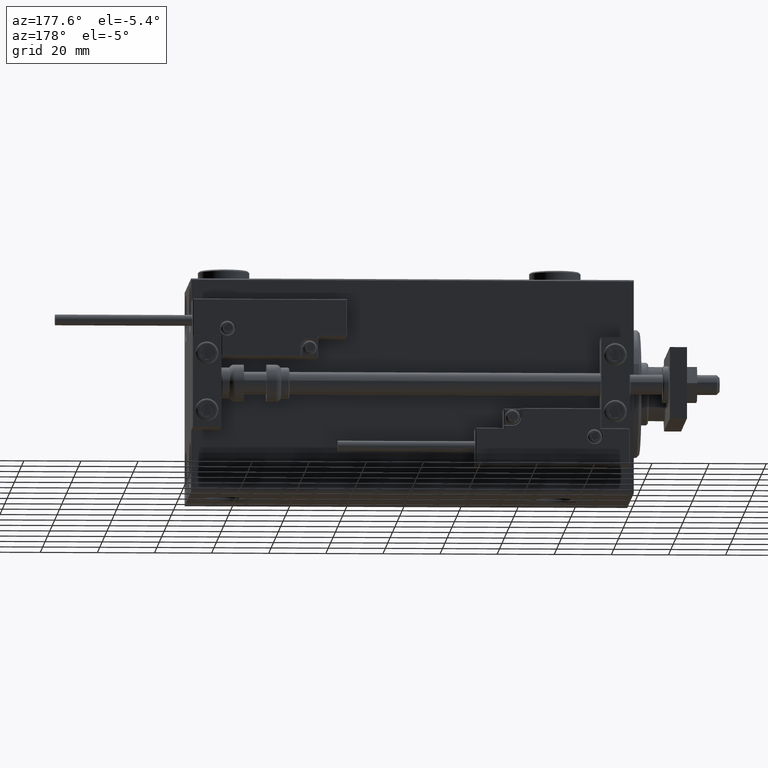
[diagram: clean part render]
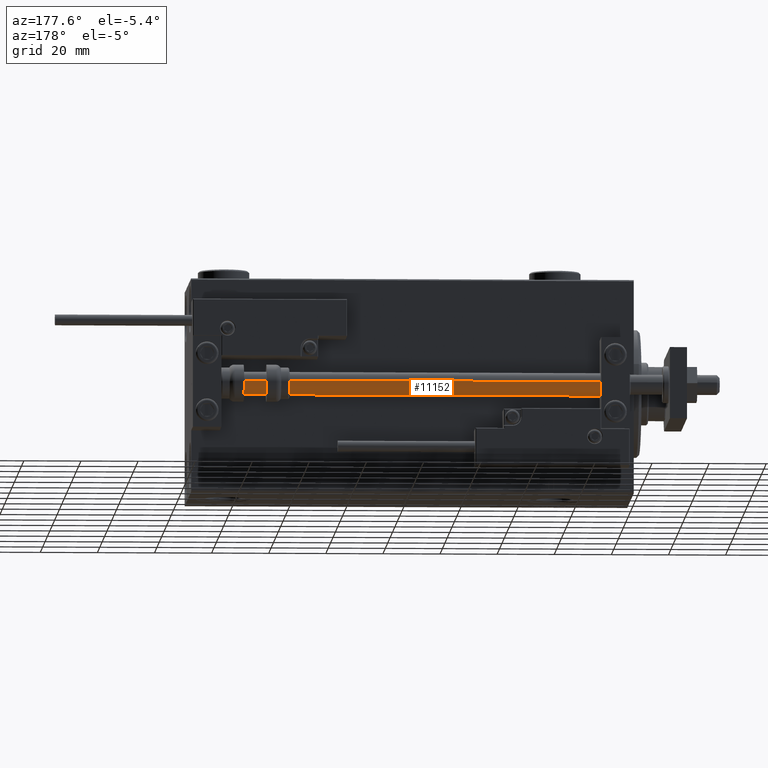
[diagram: same view with one face highlighted and labeled with its STEP entity id]
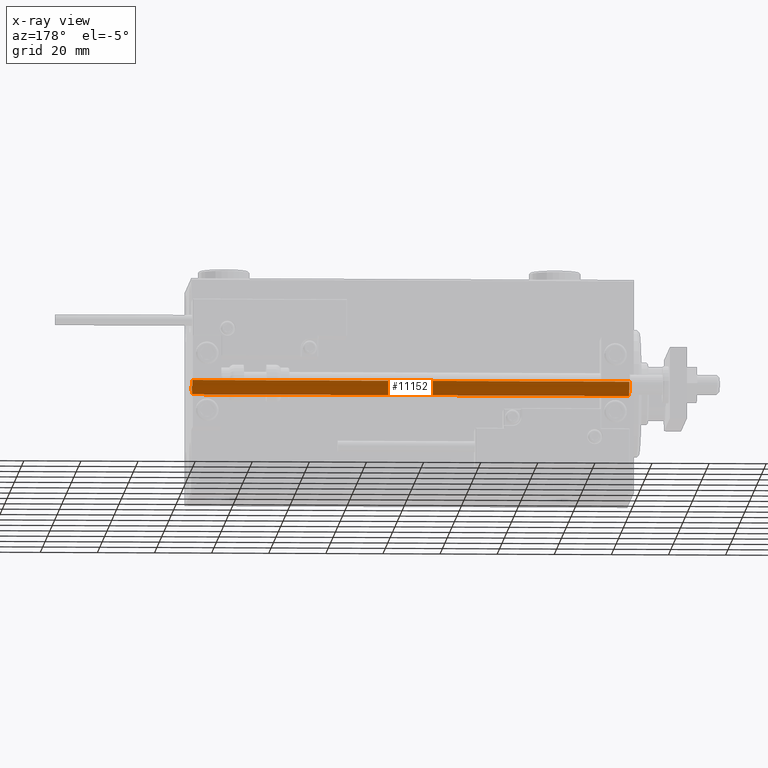
[diagram: x-ray of the same camera — body ghosted, the highlighted face saturated]
A machine part, auxiliary view. The second image highlights one B-rep face of the part: STEP entity #11152.
The next image is the same camera in x-ray: the body ghosted, the highlighted face saturated — about 0% of this face is hidden behind the body in this view.
In plain terms, the highlighted cylindrical surface (edge-blend (fillet) strip) has radius 4 mm, axis along (-1, 0, 0).
Its self-contained STEP definition (entity closure, byte-faithful):
#823 = ORIENTED_EDGE ( 'NONE', *, *, #12262, .F. ) ;
#2364 = ORIENTED_EDGE ( 'NONE', *, *, #7605, .T. ) ;
#3455 = DIRECTION ( 'NONE',  ( -0.000000000000000000, -0.000000000000000000, -1.000000000000000000 ) ) ;
#7605 = EDGE_CURVE ( 'NONE', #50683, #30988, #51138, .T. ) ;
#9325 = DIRECTION ( 'NONE',  ( -0.000000000000000000, -0.000000000000000000, 1.000000000000000000 ) ) ;
#9423 = FACE_OUTER_BOUND ( 'NONE', #16289, .T. ) ;
#9987 = CARTESIAN_POINT ( 'NONE',  ( -4.000000000000000000, 0.000000000000000000, 2.000000000000029310 ) ) ;
#11152 = ADVANCED_FACE ( 'NONE', ( #9423 ), #25083, .T. ) ;
#12262 = EDGE_CURVE ( 'NONE', #50683, #30428, #40036, .T. ) ;
#15890 = AXIS2_PLACEMENT_3D ( 'NONE', #19623, #35507, #35253 ) ;
#16289 = EDGE_LOOP ( 'NONE', ( #25249, #823, #2364, #49272 ) ) ;
#19623 = CARTESIAN_POINT ( 'NONE',  ( 0.000000000000000000, 0.000000000000000000, 155.0000000000000000 ) ) ;
#21418 = DIRECTION ( 'NONE',  ( -1.000000000000000000, 0.000000000000000000, 0.000000000000000000 ) ) ;
#24985 = DIRECTION ( 'NONE',  ( 1.000000000000000000, 0.000000000000000000, 0.000000000000000000 ) ) ;
#25083 = CYLINDRICAL_SURFACE ( 'NONE', #43351, 4.000000000000000000 ) ;
#25249 = ORIENTED_EDGE ( 'NONE', *, *, #51402, .F. ) ;
#26371 = AXIS2_PLACEMENT_3D ( 'NONE', #33297, #9325, #24985 ) ;
#28098 = CARTESIAN_POINT ( 'NONE',  ( 4.000000000000000000, 4.898587196589412829E-16, 155.0000000000000000 ) ) ;
#29017 = VECTOR ( 'NONE', #35664, 1000.000000000000000 ) ;
#30428 = VERTEX_POINT ( 'NONE', #35648 ) ;
#30988 = VERTEX_POINT ( 'NONE', #9987 ) ;
#31998 = LINE ( 'NONE', #28098, #29017 ) ;
#33143 = DIRECTION ( 'NONE',  ( -0.000000000000000000, -0.000000000000000000, -1.000000000000000000 ) ) ;
#33194 = VECTOR ( 'NONE', #3455, 1000.000000000000000 ) ;
#33297 = CARTESIAN_POINT ( 'NONE',  ( 0.000000000000000000, 0.000000000000000000, 2.000000000000029310 ) ) ;
#35253 = DIRECTION ( 'NONE',  ( 1.000000000000000000, 0.000000000000000000, 0.000000000000000000 ) ) ;
#35507 = DIRECTION ( 'NONE',  ( 0.000000000000000000, 0.000000000000000000, 1.000000000000000000 ) ) ;
#35648 = CARTESIAN_POINT ( 'NONE',  ( 4.000000000000000000, 4.898587196589412829E-16, 155.0000000000000000 ) ) ;
#35664 = DIRECTION ( 'NONE',  ( -0.000000000000000000, -0.000000000000000000, -1.000000000000000000 ) ) ;
#36322 = VERTEX_POINT ( 'NONE', #50766 ) ;
#36805 = CARTESIAN_POINT ( 'NONE',  ( 0.000000000000000000, 0.000000000000000000, 155.0000000000000000 ) ) ;
#39193 = CARTESIAN_POINT ( 'NONE',  ( -4.000000000000000000, 0.000000000000000000, 155.0000000000000000 ) ) ;
#40036 = CIRCLE ( 'NONE', #15890, 4.000000000000000000 ) ;
#40144 = EDGE_CURVE ( 'NONE', #30988, #36322, #51329, .T. ) ;
#42823 = CARTESIAN_POINT ( 'NONE',  ( -4.000000000000000000, 0.000000000000000000, 155.0000000000000000 ) ) ;
#43351 = AXIS2_PLACEMENT_3D ( 'NONE', #36805, #33143, #21418 ) ;
#49272 = ORIENTED_EDGE ( 'NONE', *, *, #40144, .T. ) ;
#50683 = VERTEX_POINT ( 'NONE', #39193 ) ;
#50766 = CARTESIAN_POINT ( 'NONE',  ( 4.000000000000000000, 4.898587196589412829E-16, 2.000000000000029310 ) ) ;
#51138 = LINE ( 'NONE', #42823, #33194 ) ;
#51329 = CIRCLE ( 'NONE', #26371, 4.000000000000000000 ) ;
#51402 = EDGE_CURVE ( 'NONE', #30428, #36322, #31998, .T. ) ;